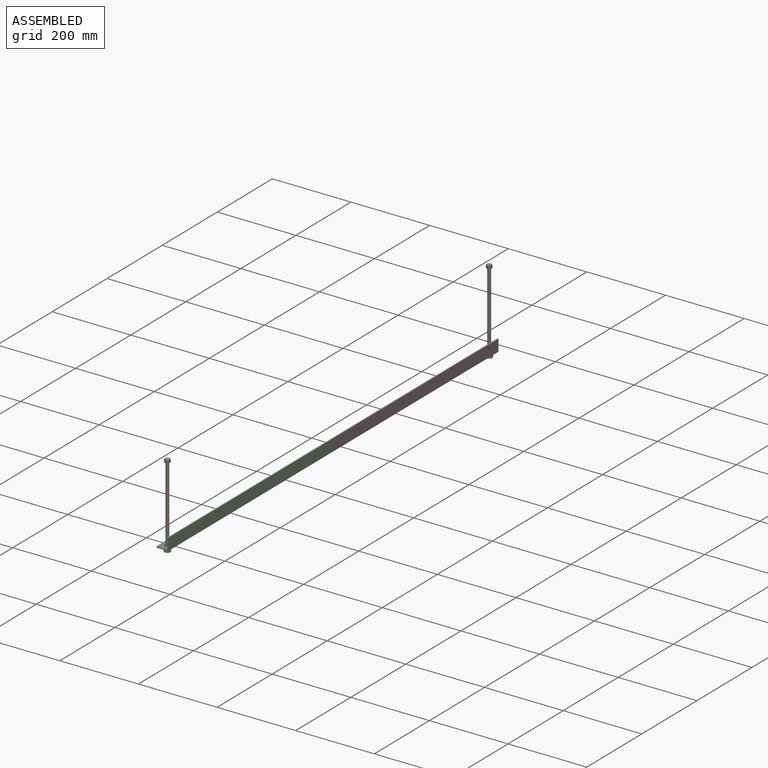
[diagram: assembled view]
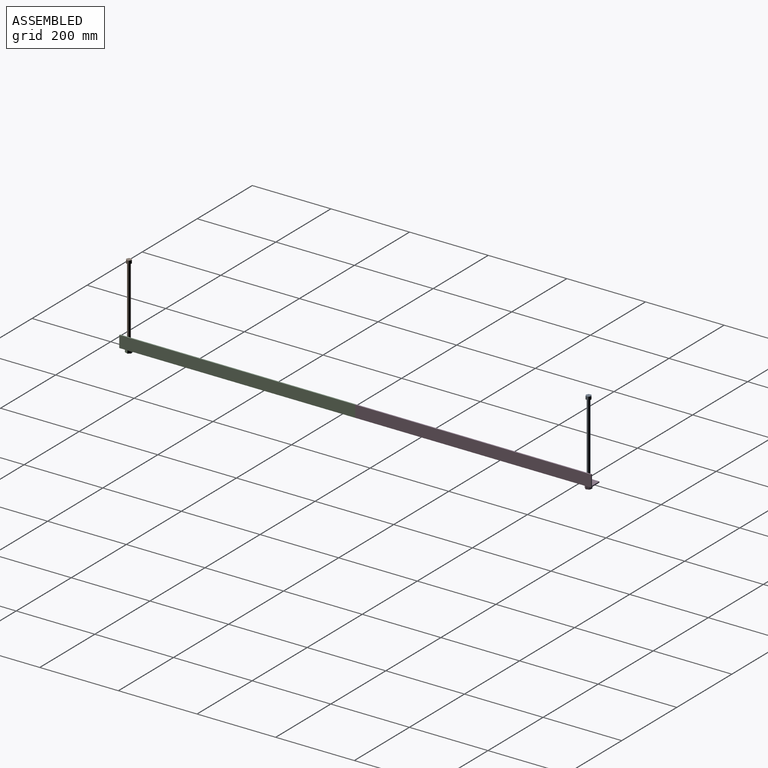
[diagram: assembled view, second angle]
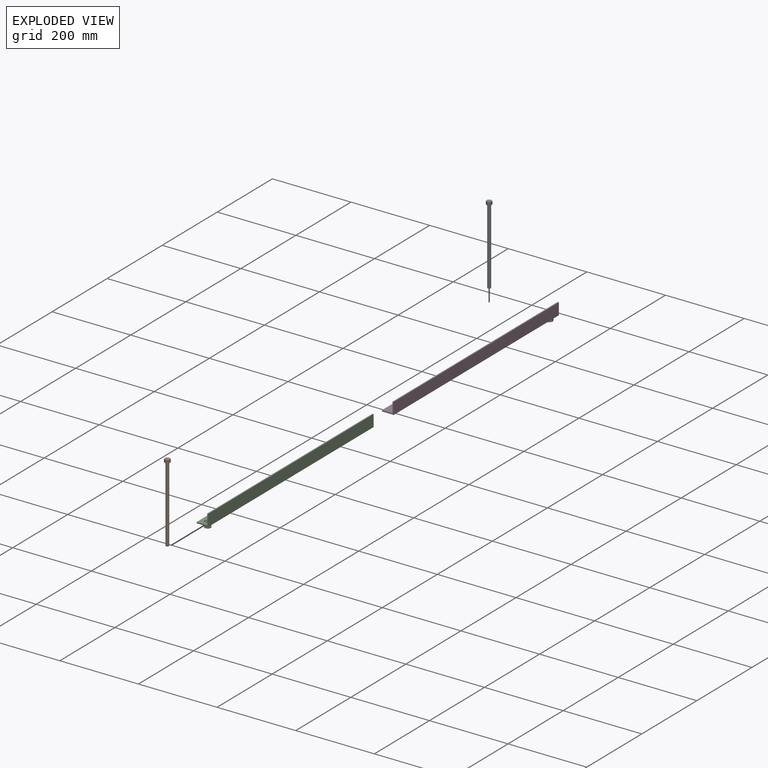
[diagram: exploded view]
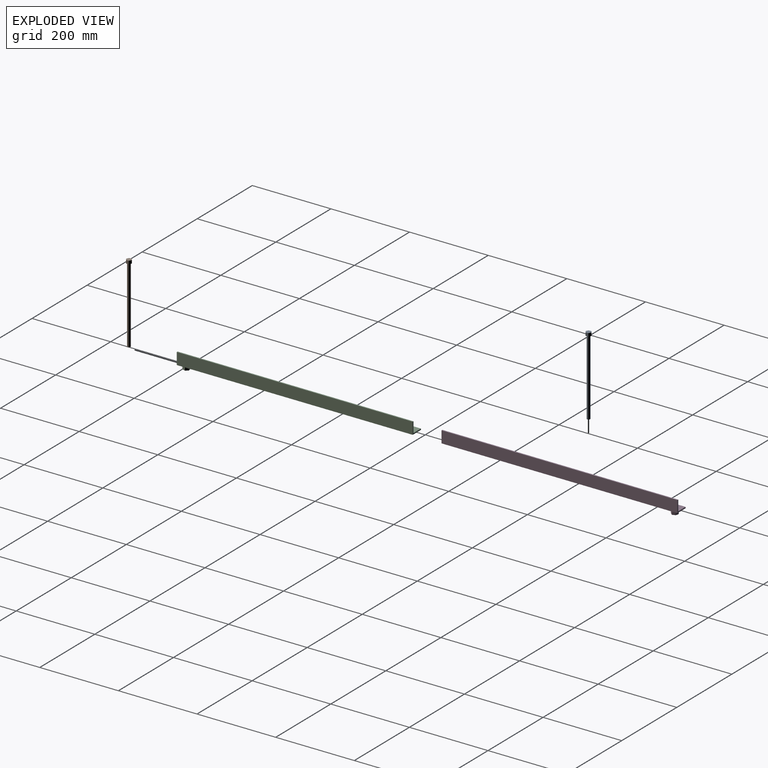
[diagram: exploded view, second angle]
ASSEMBLY  parts=4 mates=2
PART A: 10 faces, bbox 12.3x13.9x200 mm
  f0: cylinder r=4mm len=192mm, axis (0,0,-1), area 4825.5mm2, adj f1,f8
  f1: plane 8x8mm, normal (0,0,-1), area 50.3mm2, adj f0
  f2: plane 8x5.9mm, normal (-0.53,0.85,0), area 55.6mm2, adj f3,f7,f8,f9
  f3: plane 8x6.94mm, normal (-1,-0.03,0), area 55.6mm2, adj f2,f4,f8,f9
  f4: plane 8x6.13mm, normal (-0.47,-0.88,0), area 55.6mm2, adj f3,f5,f8,f9
  f5: plane 8x5.9mm, normal (0.53,-0.85,0), area 55.6mm2, adj f4,f6,f8,f9
  f6: plane 8x6.94mm, normal (1,0.03,0), area 55.6mm2, adj f5,f7,f8,f9
  f7: plane 8x6.13mm, normal (0.47,0.88,0), area 55.6mm2, adj f2,f6,f8,f9
  f8: plane 13.89x12.25mm, normal (0,0,-1), area 75.1mm2, adj f0,f2,f3,f4,f5,f6,f7
  f9: plane 13.89x12.25mm, normal (0,0,1), area 125.4mm2, adj f2,f3,f4,f5,f6,f7
PART B: same geometry as A
PART C: 21 faces, bbox 30x600x40 mm
  f0: plane 600x30mm, normal (0,0,-1), area 17685.8mm2, adj f1,f5,f6,f7,f11
  f1: plane 600x3mm, normal (-1,0,0), area 1800mm2, adj f0,f2,f6,f7
  f2: plane 600x27mm, normal (0,0,1), area 16023.3mm2, adj f1,f3,f6,f7,f8
  f3: plane 600x27mm, normal (-1,0,0), area 16200mm2, adj f2,f4,f6,f7
  f4: plane 600x3mm, normal (0,0,1), area 1800mm2, adj f3,f5,f6,f7
  f5: plane 600x30mm, normal (1,0,0), area 18000mm2, adj f0,f4,f6,f7
  f6: plane 30x30mm, normal (0,1,0), area 171mm2, adj f0,f1,f2,f3,f4,f5
  f7: plane 30x30mm, normal (0,-1,0), area 171mm2, adj f0,f1,f2,f3,f4,f5
  f8: cylinder r=7.5mm len=15mm, axis (0,0,-1), area 141.4mm2, adj f2,f9
  f9: plane 15x15mm, normal (0,0,1), area 98.2mm2, adj f8,f10
  f10: cylinder r=5mm len=10mm, axis (0,0,1), area 62.8mm2, adj f9,f18
  f11: cylinder r=10mm len=20mm, axis (0,0,1), area 125.7mm2, adj f0,f12
  f12: plane 20x20mm, normal (0,0,-1), area 126.8mm2, adj f11,f13,f14,f15,f16,f17,f19
  f13: plane 8.3x8mm, normal (-0.21,0.98,0), area 67.9mm2, adj f12,f14,f19,f20
  f14: plane 8x6.3mm, normal (0.74,0.67,0), area 67.9mm2, adj f12,f13,f15,f20
  f15: plane 8.08x8mm, normal (0.95,-0.31,0), area 67.9mm2, adj f12,f14,f16,f20
  f16: plane 8.3x8mm, normal (0.21,-0.98,0), area 67.9mm2, adj f12,f15,f17,f20
  f17: plane 8x6.3mm, normal (-0.74,-0.67,0), area 67.9mm2, adj f12,f16,f19,f20
  f18: cylinder r=5mm len=10.01mm, axis (0,0,1), area 251.6mm2, adj f10,f20
  f19: plane 8.08x8mm, normal (-0.95,0.31,0), area 67.9mm2, adj f12,f13,f17,f20
  f20: plane 16.61x16.16mm, normal (0,0,-1), area 108.7mm2, adj f13,f14,f15,f16,f17,f18,f19
PART D: 21 faces, bbox 30x600x40 mm
  f0: plane 20x20mm, normal (0,0,-1), area 126.8mm2, adj f11,f13,f14,f15,f16,f17,f19
  f1: plane 600x30mm, normal (0,0,-1), area 17685.8mm2, adj f2,f6,f7,f8,f11
  f2: plane 600x30mm, normal (1,0,0), area 18000mm2, adj f1,f3,f7,f8
  f3: plane 600x3mm, normal (0,0,1), area 1800mm2, adj f2,f4,f7,f8
  f4: plane 600x27mm, normal (-1,0,0), area 16200mm2, adj f3,f5,f7,f8
  f5: plane 600x27mm, normal (0,0,1), area 16023.3mm2, adj f4,f6,f7,f8,f9
  f6: plane 600x3mm, normal (-1,0,0), area 1800mm2, adj f1,f5,f7,f8
  f7: plane 30x30mm, normal (0,-1,0), area 171mm2, adj f1,f2,f3,f4,f5,f6
  f8: plane 30x30mm, normal (0,1,0), area 171mm2, adj f1,f2,f3,f4,f5,f6
  f9: cylinder r=7.5mm len=15mm, axis (0,0,-1), area 141.4mm2, adj f5,f12
  f10: cylinder r=5mm len=10mm, axis (0,0,1), area 62.8mm2, adj f12,f18
  f11: cylinder r=10mm len=20mm, axis (0,0,1), area 125.7mm2, adj f0,f1
  f12: plane 15x15mm, normal (0,0,1), area 98.2mm2, adj f9,f10
  f13: plane 8.3x8mm, normal (-0.21,-0.98,0), area 67.9mm2, adj f0,f14,f19,f20
  f14: plane 8.08x8mm, normal (-0.95,-0.31,0), area 67.9mm2, adj f0,f13,f15,f20
  f15: plane 8x6.3mm, normal (-0.74,0.67,0), area 67.9mm2, adj f0,f14,f16,f20
  f16: plane 8.3x8mm, normal (0.21,0.98,0), area 67.9mm2, adj f0,f15,f17,f20
  f17: plane 8.08x8mm, normal (0.95,0.31,0), area 67.9mm2, adj f0,f16,f19,f20
  f18: cylinder r=5mm len=10.01mm, axis (0,0,1), area 251.6mm2, adj f10,f20
  f19: plane 8x6.3mm, normal (0.74,-0.67,0), area 67.9mm2, adj f0,f13,f17,f20
  f20: plane 16.61x16.16mm, normal (0,0,-1), area 108.7mm2, adj f13,f14,f15,f16,f17,f18,f19
PLACE A t=(1.89,556.85,-48.16)mm
PLACE B t=(1.89,-611.99,-48.16)mm
PLACE C t=(14.77,572.43,-51.16)mm fixed
PLACE D t=(14.77,572.43,-51.16)mm fixed
MATE slider D.f9 <-> A.f0  axis (0,0,1) through (1.89,556.85,-48.16)mm
MATE slider C.f8 <-> B.f0  axis (0,0,1) through (1.89,-611.99,-48.16)mm
